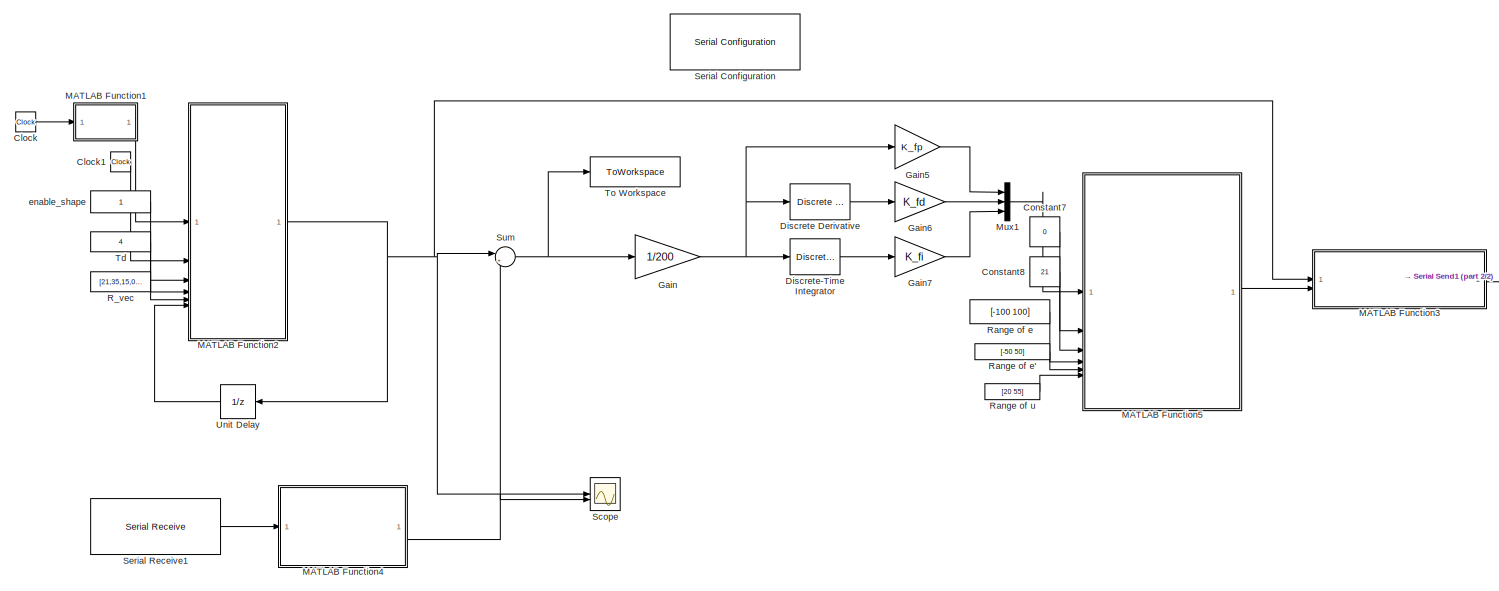
[diagram: root canvas - part 1/2, most of the canvas]
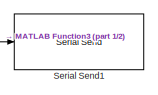
[diagram: root canvas - part 2/2, middle right region]
MODEL slx_e177c6bf62ea
KIND model
CONFIG AbsTol = auto
CONFIG EnableMultiTasking = off
CONFIG FixedStep = 0.01
CONFIG MaxStep = auto
CONFIG MinStep = auto
CONFIG RelTol = 1e-3
CONFIG SampleTimeConstraint = Unconstrained
CONFIG SolverName = FixedStepAuto
CONFIG StartTime = 0.0
CONFIG StopTime = 19
BLOCK [Clock] Clock
BLOCK [Clock] Clock1
BLOCK [Constant] Constant7
  Value = 0
BLOCK [Constant] Constant8
  Value = 21
BLOCK [Reference] Discrete Derivative  REF=simulink/Discrete/Discrete Derivative
  SourceBlock = simulink/Discrete/Discrete Derivative
  SourceType = Discrete Derivative
BLOCK [DiscreteIntegrator] Discrete-Time Integrator
  ICPrevOutput = DiscIntNeverNeededParam
  ICPrevScaledInput = DiscIntNeverNeededParam
  InitialConditionSetting = Auto
  LimitOutput = on
  LowerSaturationLimit = 0
  SampleTime = 0.01
  UpperSaturationLimit = 65
BLOCK [Gain] Gain
  Gain = 1/200
BLOCK [Gain] Gain5
  Gain = K_fp
BLOCK [Gain] Gain6
  Gain = K_fd
BLOCK [Gain] Gain7
  Gain = K_fi
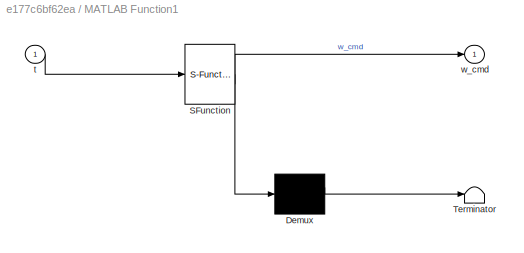
BLOCK [SubSystem] MATLAB Function1
  ErrorFcn = Stateflow.Translate.translate
  PermitHierarchicalResolution = ExplicitOnly
  SFBlockType = MATLAB Function
  TreatAsAtomicUnit = on
BLOCK [Demux] MATLAB Function1/ Demux 
  Outputs = 1
BLOCK [S-Function] MATLAB Function1/ SFunction 
  EnableBusSupport = off
  FunctionName = sf_sfun
  PortCounts = [1 2]
  SFcnIsStateOwnerBlock = off
  SFunctionDeploymentMode = off
  Tag = Stateflow S-Function 2
BLOCK [Terminator] MATLAB Function1/ Terminator 
BLOCK [Inport] MATLAB Function1/t
BLOCK [Outport] MATLAB Function1/w_cmd
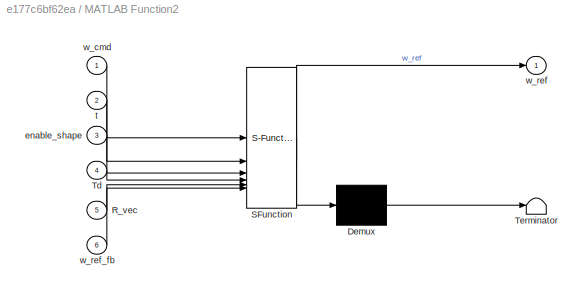
BLOCK [SubSystem] MATLAB Function2
  ErrorFcn = Stateflow.Translate.translate
  PermitHierarchicalResolution = ExplicitOnly
  SFBlockType = MATLAB Function
  TreatAsAtomicUnit = on
BLOCK [Demux] MATLAB Function2/ Demux 
  Outputs = 1
BLOCK [S-Function] MATLAB Function2/ SFunction 
  EnableBusSupport = off
  FunctionName = sf_sfun
  PortCounts = [6 2]
  SFcnIsStateOwnerBlock = off
  SFunctionDeploymentMode = off
  Tag = Stateflow S-Function 4
BLOCK [Terminator] MATLAB Function2/ Terminator 
BLOCK [Inport] MATLAB Function2/R_vec
  Port = 5
BLOCK [Inport] MATLAB Function2/Td
  Port = 4
BLOCK [Inport] MATLAB Function2/enable_shape
  Port = 3
BLOCK [Inport] MATLAB Function2/t
  Port = 2
BLOCK [Inport] MATLAB Function2/w_cmd
BLOCK [Outport] MATLAB Function2/w_ref
BLOCK [Inport] MATLAB Function2/w_ref_fb
  Port = 6
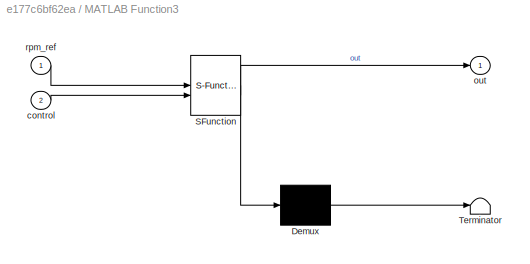
BLOCK [SubSystem] MATLAB Function3
  ErrorFcn = Stateflow.Translate.translate
  PermitHierarchicalResolution = ExplicitOnly
  SFBlockType = MATLAB Function
  TreatAsAtomicUnit = on
BLOCK [Demux] MATLAB Function3/ Demux 
  Outputs = 1
BLOCK [S-Function] MATLAB Function3/ SFunction 
  EnableBusSupport = off
  FunctionName = sf_sfun
  PortCounts = [2 2]
  SFcnIsStateOwnerBlock = off
  SFunctionDeploymentMode = off
  Tag = Stateflow S-Function 9
BLOCK [Terminator] MATLAB Function3/ Terminator 
BLOCK [Inport] MATLAB Function3/control
  Port = 2
BLOCK [Outport] MATLAB Function3/out
BLOCK [Inport] MATLAB Function3/rpm_ref
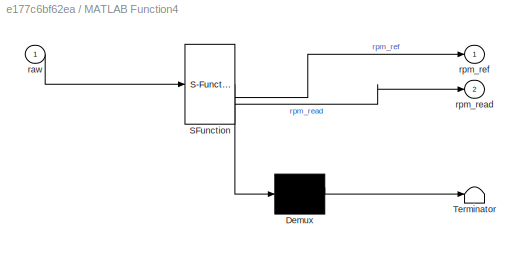
BLOCK [SubSystem] MATLAB Function4
  ErrorFcn = Stateflow.Translate.translate
  PermitHierarchicalResolution = ExplicitOnly
  SFBlockType = MATLAB Function
  TreatAsAtomicUnit = on
BLOCK [Demux] MATLAB Function4/ Demux 
  Outputs = 1
BLOCK [S-Function] MATLAB Function4/ SFunction 
  EnableBusSupport = off
  FunctionName = sf_sfun
  PortCounts = [1 3]
  SFcnIsStateOwnerBlock = off
  SFunctionDeploymentMode = off
  Tag = Stateflow S-Function 6
BLOCK [Terminator] MATLAB Function4/ Terminator 
BLOCK [Inport] MATLAB Function4/raw
BLOCK [Outport] MATLAB Function4/rpm_read
  Port = 2
BLOCK [Outport] MATLAB Function4/rpm_ref
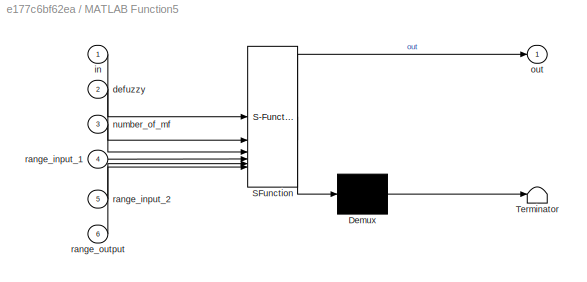
BLOCK [SubSystem] MATLAB Function5
  ErrorFcn = Stateflow.Translate.translate
  PermitHierarchicalResolution = ExplicitOnly
  SFBlockType = MATLAB Function
  TreatAsAtomicUnit = on
BLOCK [Demux] MATLAB Function5/ Demux 
  Outputs = 1
BLOCK [S-Function] MATLAB Function5/ SFunction 
  EnableBusSupport = off
  FunctionName = sf_sfun
  PortCounts = [6 2]
  SFcnIsStateOwnerBlock = off
  SFunctionDeploymentMode = off
  Tag = Stateflow S-Function 8
BLOCK [Terminator] MATLAB Function5/ Terminator 
BLOCK [Inport] MATLAB Function5/defuzzy
  Port = 2
BLOCK [Inport] MATLAB Function5/in
BLOCK [Inport] MATLAB Function5/number_of_mf
  Port = 3
BLOCK [Outport] MATLAB Function5/out
BLOCK [Inport] MATLAB Function5/range_input_1
  Port = 4
BLOCK [Inport] MATLAB Function5/range_input_2
  Port = 5
BLOCK [Inport] MATLAB Function5/range_output
  Port = 6
BLOCK [Mux] Mux1
  DisplayOption = bar
  Inputs = 3
BLOCK [Constant] R_vec
  SampleTime = -1
  Value = [21,35,15,0,0,0]
BLOCK [Constant] Range of e
  Value = [-100 100]
BLOCK [Constant] Range of e'
  Value = [-50 50]
BLOCK [Constant] Range of u
  Value = [20 55]
BLOCK [Scope] Scope
  ActiveDisplayYMaximum = 35145.625
  ActiveDisplayYMinimum = -3270.6249999999991
  Floating = off
  GraphicalSettings = {"AxesScalingProperties":{"AlignXAxis":"Center","AlignYAxis":"Center","AutoScaleXAxisLimits":false,"AxesScaling":"Manual","AxesScalingNumUpdates":10,"ExpandOnly":true,"ScaleAxesLimitsAtStop":false,"XAxisDataRange":100,"YAxisDataRange":80},"DisplayProperties":{"ColorOrder":["auto","auto","auto","auto","auto","auto","auto","auto","auto","auto","auto","auto","auto","auto","auto","auto","auto","auto",...<+2141ch>
  MultipleDisplayCache = [{"MaxYLimMag":35145.625,"MaxYLimReal":35145.625,"MinYLimMag":0,"MinYLimReal":-3270.6249999999991,"PlotAsMagnitudePhase":false,"ShowGrid":true,"ShowLegend":false,"Title":"%<SignalLabel>","YLabel":""}]
  NumInputPorts = 2
  ScopeFrameLocation = window
  WasSavedAsWebScope = on
  WindowPosition = [150.000000,194.000000,1646.000000,855.000000,]
BLOCK [Reference] Serial Configuration  REF=instrumentseriallib/Serial Configuration
  LibrarySourceBlock = instrumentlib/Serial Configuration
  Priority = -200000
  SourceBlock = instrumentseriallib/Serial Configuration
  SourceType = system.SerialConfiguration
BLOCK [Reference] Serial Receive1  REF=instrumentseriallib/Serial Receive
  LibrarySourceBlock = instrumentlib/Serial Receive
  Priority = 1
  SourceBlock = instrumentseriallib/Serial Receive
  SourceType = system.SerialReceive
BLOCK [Reference] Serial Send1  REF=instrumentseriallib/Serial Send
  LibrarySourceBlock = instrumentlib/Serial Send
  Priority = 1
  SourceBlock = instrumentseriallib/Serial Send
  SourceType = system.SerialSend
BLOCK [Sum] Sum
  Inputs = |+-
BLOCK [Constant] Td
  SampleTime = -1
  Value = 4
BLOCK [ToWorkspace] To Workspace
  FixptAsFi = on
  MaxDataPoints = inf
  SampleTime = -1
  Save2DSignal = 2-D array (concatenate along first dimension)
  VariableName = error_sim
BLOCK [UnitDelay] Unit Delay
  HasFrameUpgradeWarning = on
  NameLocation = top
  SampleTime = -1
BLOCK [Constant] enable_shape
  SampleTime = -1
LINE Clock1:1 -> MATLAB Function2:2
LINE Clock:1 -> MATLAB Function1:1
LINE Constant7:1 -> MATLAB Function5:2
LINE Constant8:1 -> MATLAB Function5:3
LINE Discrete Derivative:1 -> Gain6:1
LINE Discrete-Time Integrator:1 -> Gain7:1
LINE Gain5:1 -> Mux1:1
LINE Gain6:1 -> Mux1:2
LINE Gain7:1 -> Mux1:3
NET Gain:1 -> Discrete Derivative:1, Discrete-Time Integrator:1, Gain5:1
LINE MATLAB Function1:1 -> MATLAB Function2:1
NET MATLAB Function2:1 -> MATLAB Function3:1, Scope:1, Sum:1, Unit Delay:1
LINE MATLAB Function3:1 -> Serial Send1:1
NET MATLAB Function4:2 -> Scope:2, Sum:2
LINE MATLAB Function5:1 -> MATLAB Function3:2
LINE Mux1:1 -> MATLAB Function5:1
LINE R_vec:1 -> MATLAB Function2:5
LINE Range of e':1 -> MATLAB Function5:5
LINE Range of e:1 -> MATLAB Function5:4
LINE Range of u:1 -> MATLAB Function5:6
LINE Serial Receive1:1 -> MATLAB Function4:1
NET Sum:1 -> Gain:1, To Workspace:1
LINE Td:1 -> MATLAB Function2:4
LINE Unit Delay:1 -> MATLAB Function2:6
LINE enable_shape:1 -> MATLAB Function2:3
note: NET lines group one-source signal fan-out (src -> all destinations, sorted); 1:1 wires keep LINE
CHART MATLAB Function1 states=1 transitions=1
  STATE_LABEL 'eML_blk_kernel()'
  STATE_LABEL 'SCRIPT:\nfunction w_cmd = Generador_Perfil(t)\n    % Genera la señal escalón para alimentar al suavizador Bezier\n    % Secuencia: 540 -> 1160 -> 800\n    \n    % --- CONFIGURACIÓN DE TIEMPOS ---\n    % Td es 4 segundos. Dejamos un margen para que se estabilice.\n    t_inicio = 4;   % Tiempo para el primer cambio (540 -> 1160)\n    t_bajada = 13;  % Tiempo para el segundo cambio (1160 -> 800)\n    \n    % -...<+280ch>'
CHART MATLAB Function2 states=1 transitions=1
  STATE_LABEL 'eML_blk_kernel()'
  STATE_LABEL 'SCRIPT:\nfunction w_ref = BezierRef(w_cmd, t, enable_shape, Td, R_vec, w_ref_fb)\n% =================================================================\n% VERSIÓN 6 (Corrección de arranque en cero)\n% =================================================================\n%\n% Entradas:\n%   w_cmd     : setpoint deseado (de la GUI)\n%   t         : tiempo absoluto (Clock)\n%   enable_shape : 1 = perfilar, 0 = pas...<+1893ch>'
CHART MATLAB Function4 states=1 transitions=1
  STATE_LABEL 'eML_blk_kernel()'
  STATE_LABEL 'SCRIPT:\nfunction [rpm_ref, rpm_read] = parseRPM(raw)\n%#codegen\n% raw: 1x2 uint16 vector received from ESP32\n% rpm_read: measured RPM from encoder\n% rpm_ref:  reference RPM echoed back from ESP32\n\nrpm_read = double(raw(2));   % first  uint16 from ESP32\nrpm_ref  = double(raw(1));   % second uint16 from ESP32\nend\n'
CHART MATLAB Function5 states=1 transitions=1
  STATE_LABEL 'eML_blk_kernel()'
  STATE_LABEL 'SCRIPT:\nfunction out = fcn(in, defuzzy, number_of_mf, range_input_1, range_input_2, range_output)\n% ------------------------------------------------------------\n%   Fuzzy PD compacto (discreto)\n%   Entradas:\n%     in(1) = error\n%     in(2) = derror\n%\n%   NOTA: Ignoramos los parámetros externos y usamos\n%         valores internos estables optimizados\n% ----------------------------------------------...<+1735ch>'
CHART MATLAB Function3 states=1 transitions=1
  STATE_LABEL 'eML_blk_kernel()'
  STATE_LABEL 'SCRIPT:\nfunction out = packRefAndPWM(rpm_ref, control)\n% Esta función ahora empaqueta [rpm_ref, frequency_hz]\n% El \'control_signal\' (antes \'voltage\') viene de 0-60 desde el "Knob".\n\n% --- 1. Escalado lineal ---\n% Frecuencia (0-60 Hz)\ntarget_freq = control;\n\n% --- 2. Empaquetado ---\n% Convierte ambos valores a uint16 para enviar por UART\nfreq_u16 = uint16(target_freq);\nrpm_ref_u16 = uint16(rpm_ref)...<+101ch>'
CHART  states=0 transitions=0
CHART  states=0 transitions=0
CHART  states=0 transitions=0
CHART  states=0 transitions=0
CHART  states=0 transitions=0
